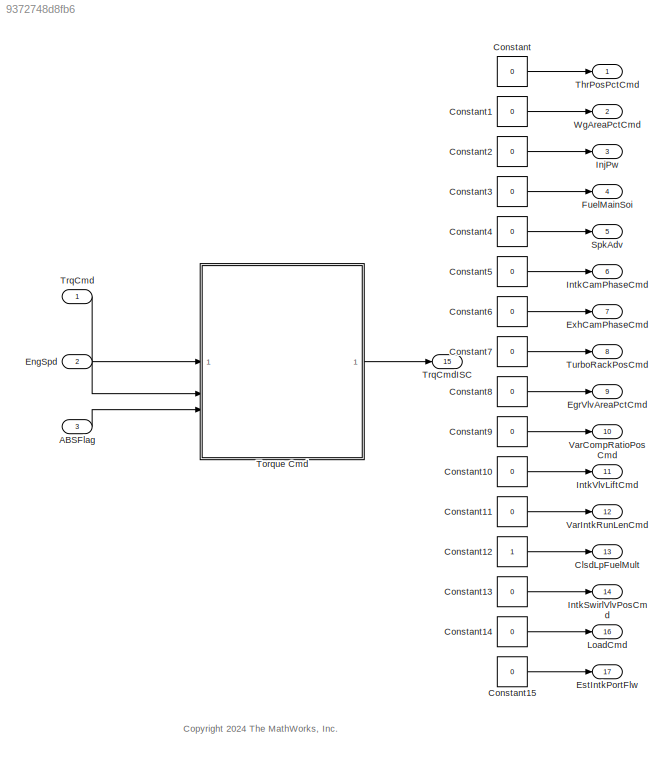
MODEL slx_9372748d8fb6
KIND model
CONFIG AbsTol = auto
CONFIG EnableMultiTasking = off
CONFIG FixedStep = auto
CONFIG MaxStep = auto
CONFIG MinStep = auto
CONFIG RelTol = 1e-3
CONFIG SampleTimeConstraint = Unconstrained
CONFIG SolverName = VariableStepAuto
CONFIG StartTime = 0.0
CONFIG StopTime = 10.0
BLOCK [Inport] ABSFlag
  OutDataTypeStr = boolean
  Port = 3
BLOCK [Outport] ClsdLpFuelMult
  Port = 13
  SampleTime = 0.01
  VectorParamsAs1DForOutWhenUnconnected = off
BLOCK [Constant] Constant
  SampleTime = -1
  Value = 0
BLOCK [Constant] Constant1
  SampleTime = -1
  Value = 0
BLOCK [Constant] Constant10
  SampleTime = -1
  Value = 0
BLOCK [Constant] Constant11
  SampleTime = -1
  Value = 0
BLOCK [Constant] Constant12
  SampleTime = -1
BLOCK [Constant] Constant13
  SampleTime = -1
  Value = 0
BLOCK [Constant] Constant14
  SampleTime = -1
  Value = 0
BLOCK [Constant] Constant15
  SampleTime = -1
  Value = 0
BLOCK [Constant] Constant2
  SampleTime = -1
  Value = 0
BLOCK [Constant] Constant3
  SampleTime = -1
  Value = 0
BLOCK [Constant] Constant4
  SampleTime = -1
  Value = 0
BLOCK [Constant] Constant5
  SampleTime = -1
  Value = 0
BLOCK [Constant] Constant6
  SampleTime = -1
  Value = 0
BLOCK [Constant] Constant7
  SampleTime = -1
  Value = 0
BLOCK [Constant] Constant8
  SampleTime = -1
  Value = 0
BLOCK [Constant] Constant9
  SampleTime = -1
  Value = 0
BLOCK [Outport] EgrVlvAreaPctCmd
  Port = 9
  Unit = %
  VectorParamsAs1DForOutWhenUnconnected = off
BLOCK [Inport] EngSpd
  Port = 2
BLOCK [Outport] EstIntkPortFlw
  Port = 17
  VectorParamsAs1DForOutWhenUnconnected = off
BLOCK [Outport] ExhCamPhaseCmd
  Port = 7
  VectorParamsAs1DForOutWhenUnconnected = off
BLOCK [Outport] FuelMainSoi
  Port = 4
  Unit = deg
  VectorParamsAs1DForOutWhenUnconnected = off
BLOCK [Outport] InjPw
  Port = 3
  SampleTime = 0.01
  VectorParamsAs1DForOutWhenUnconnected = off
BLOCK [Outport] IntkCamPhaseCmd
  Port = 6
  VectorParamsAs1DForOutWhenUnconnected = off
BLOCK [Outport] IntkSwirlVlvPosCmd
  Port = 14
  VectorParamsAs1DForOutWhenUnconnected = off
BLOCK [Outport] IntkVlvLiftCmd
  Port = 11
  VectorParamsAs1DForOutWhenUnconnected = off
BLOCK [Outport] LoadCmd
  Port = 16
  VectorParamsAs1DForOutWhenUnconnected = off
BLOCK [Outport] SpkAdv
  Port = 5
  VectorParamsAs1DForOutWhenUnconnected = off
BLOCK [Outport] ThrPosPctCmd
  VectorParamsAs1DForOutWhenUnconnected = off
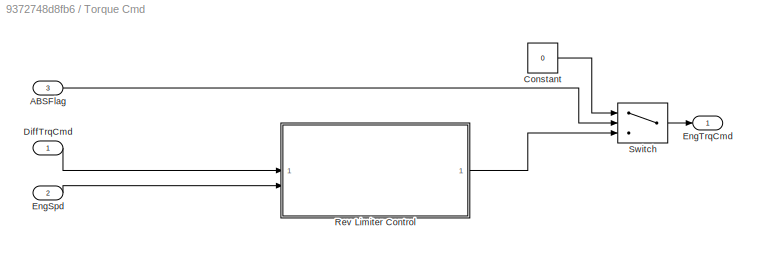
BLOCK [SubSystem] Torque Cmd
  SystemSampleTime = .01
  TreatAsAtomicUnit = on
BLOCK [Inport] Torque Cmd/ABSFlag
  Port = 3
BLOCK [Constant] Torque Cmd/Constant
  SampleTime = -1
  Value = 0
BLOCK [Inport] Torque Cmd/DiffTrqCmd
BLOCK [Inport] Torque Cmd/EngSpd
  Port = 2
  Unit = rpm
BLOCK [Outport] Torque Cmd/EngTrqCmd
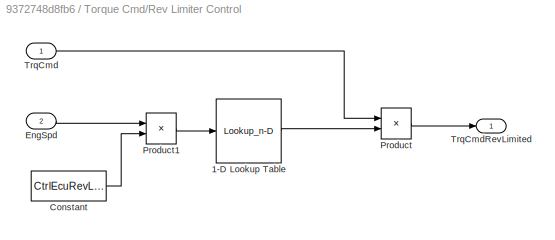
BLOCK [SubSystem] Torque Cmd/Rev Limiter Control
BLOCK [Lookup_n-D] Torque Cmd/Rev Limiter Control/1-D Lookup Table
  BreakpointsForDimension1 = [1 1.01]
  ExtrapMethod = Clip
  InputPortMap = u0
  InternalRulePriority = Speed
  NumberOfTableDimensions = 1
  RndMeth = Simplest
  Table = [1 0]
BLOCK [Constant] Torque Cmd/Rev Limiter Control/Constant
  SampleTime = -1
  Value = CtrlEcuRevLim
BLOCK [Inport] Torque Cmd/Rev Limiter Control/EngSpd
  Port = 2
BLOCK [Product] Torque Cmd/Rev Limiter Control/Product
BLOCK [Product] Torque Cmd/Rev Limiter Control/Product1
  Inputs = */
BLOCK [Inport] Torque Cmd/Rev Limiter Control/TrqCmd
BLOCK [Outport] Torque Cmd/Rev Limiter Control/TrqCmdRevLimited
  VectorParamsAs1DForOutWhenUnconnected = off
BLOCK [Switch] Torque Cmd/Switch
  Criteria = u2 > Threshold
  InputSameDT = off
  SaturateOnIntegerOverflow = off
  ZeroCross = off
BLOCK [Inport] TrqCmd
BLOCK [Outport] TrqCmdISC
  Port = 15
  VectorParamsAs1DForOutWhenUnconnected = off
BLOCK [Outport] TurboRackPosCmd
  Port = 8
  Unit = 1
  VectorParamsAs1DForOutWhenUnconnected = off
BLOCK [Outport] VarCompRatioPosCmd
  Port = 10
  VectorParamsAs1DForOutWhenUnconnected = off
BLOCK [Outport] VarIntkRunLenCmd
  Port = 12
  VectorParamsAs1DForOutWhenUnconnected = off
BLOCK [Outport] WgAreaPctCmd
  Port = 2
  VectorParamsAs1DForOutWhenUnconnected = off
ANNOTATION (root): <copyright redacted>
LINE ABSFlag:1 -> Torque Cmd:3
LINE Constant10:1 -> IntkVlvLiftCmd:1
LINE Constant11:1 -> VarIntkRunLenCmd:1
LINE Constant12:1 -> ClsdLpFuelMult:1
LINE Constant13:1 -> IntkSwirlVlvPosCmd:1
LINE Constant14:1 -> LoadCmd:1
LINE Constant15:1 -> EstIntkPortFlw:1
LINE Constant1:1 -> WgAreaPctCmd:1
LINE Constant2:1 -> InjPw:1
LINE Constant3:1 -> FuelMainSoi:1
LINE Constant4:1 -> SpkAdv:1
LINE Constant5:1 -> IntkCamPhaseCmd:1
LINE Constant6:1 -> ExhCamPhaseCmd:1
LINE Constant7:1 -> TurboRackPosCmd:1
LINE Constant8:1 -> EgrVlvAreaPctCmd:1
LINE Constant9:1 -> VarCompRatioPosCmd:1
LINE Constant:1 -> ThrPosPctCmd:1
LINE EngSpd:1 -> Torque Cmd:2
LINE Torque Cmd/ABSFlag:1 -> Torque Cmd/Switch:2
LINE Torque Cmd/Constant:1 -> Torque Cmd/Switch:1
LINE Torque Cmd/DiffTrqCmd:1 -> Torque Cmd/Rev Limiter Control:1
LINE Torque Cmd/EngSpd:1 -> Torque Cmd/Rev Limiter Control:2
LINE Torque Cmd/Rev Limiter Control/1-D Lookup Table:1 -> Torque Cmd/Rev Limiter Control/Product:2
LINE Torque Cmd/Rev Limiter Control/Constant:1 -> Torque Cmd/Rev Limiter Control/Product1:2
LINE Torque Cmd/Rev Limiter Control/EngSpd:1 -> Torque Cmd/Rev Limiter Control/Product1:1
LINE Torque Cmd/Rev Limiter Control/Product1:1 -> Torque Cmd/Rev Limiter Control/1-D Lookup Table:1
LINE Torque Cmd/Rev Limiter Control/Product:1 -> Torque Cmd/Rev Limiter Control/TrqCmdRevLimited:1
LINE Torque Cmd/Rev Limiter Control/TrqCmd:1 -> Torque Cmd/Rev Limiter Control/Product:1
LINE Torque Cmd/Rev Limiter Control:1 -> Torque Cmd/Switch:3
LINE Torque Cmd/Switch:1 -> Torque Cmd/EngTrqCmd:1
LINE Torque Cmd:1 -> TrqCmdISC:1
LINE TrqCmd:1 -> Torque Cmd:1
